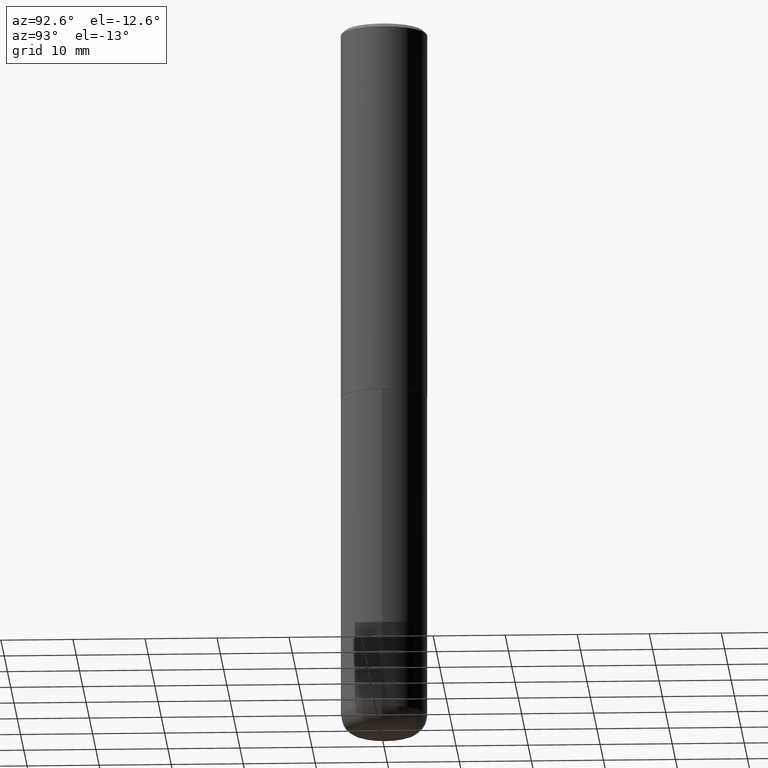
[diagram: clean part render]
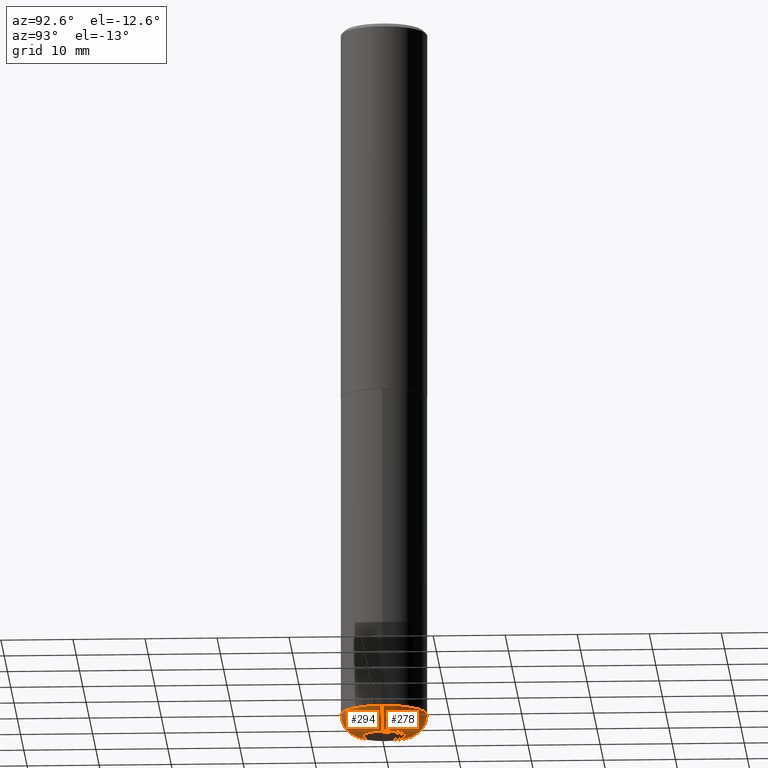
[diagram: same view with one multi-face feature highlighted, each face labeled with its STEP entity id]
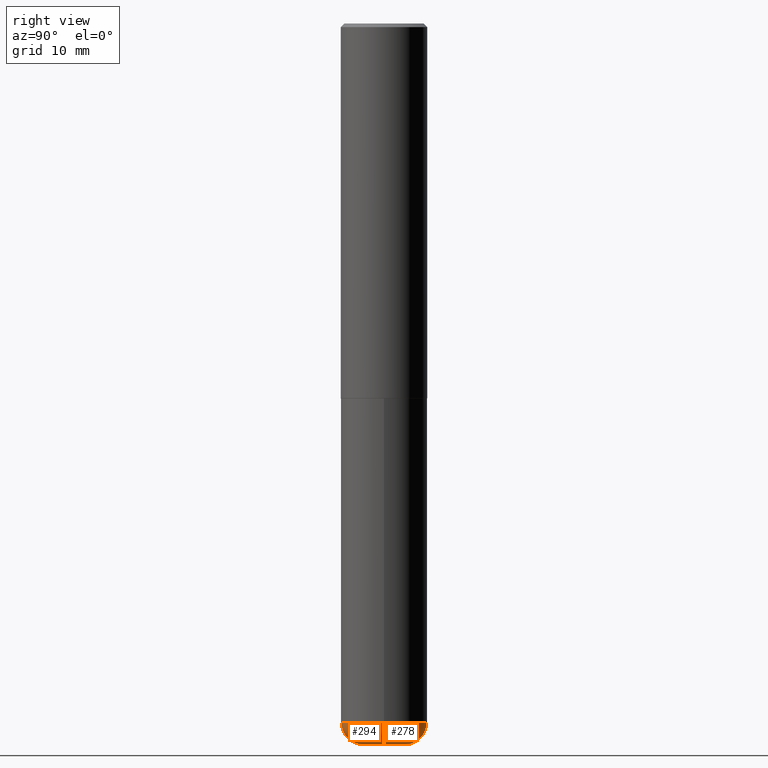
[diagram: same view with one multi-face feature highlighted, each face labeled with its STEP entity id]
A machine part, auxiliary view. The highlighted faces form ONE feature: a constant-radius fillet chain: 2 tangent blend faces with common blend radius 2.9997 mm. The faces share edges in the B-rep.
A second angle (right view) of the same feature is appended — it is thin or edge-on in the first view.
Their STEP definitions:
[1] entity #278 (Torus):
#13 = EDGE_CURVE ( 'NONE', #158, #172, #150, .T. ) ;
#22 = CARTESIAN_POINT ( 'NONE',  ( 9.627810689950883669E-29, -1.374596203102546341E-14, -3.937000000000000277 ) ) ;
#23 = CARTESIAN_POINT ( 'NONE',  ( -0.2362000000000000210, -1.165531614304273447E-14, -3.818900000000000183 ) ) ;
#24 = CIRCLE ( 'NONE', #367, 0.1181000000000000383 ) ;
#42 = ORIENTED_EDGE ( 'NONE', *, *, #106, .F. ) ;
#72 = VERTEX_POINT ( 'NONE', #23 ) ;
#73 = CIRCLE ( 'NONE', #308, 0.2362000000000000210 ) ;
#80 = EDGE_LOOP ( 'NONE', ( #314, #242, #42, #170 ) ) ;
#102 = CARTESIAN_POINT ( 'NONE',  ( 0.2362000000000000210, -1.498299386937758423E-14, -3.818900000000000183 ) ) ;
#106 = EDGE_CURVE ( 'NONE', #320, #72, #73, .T. ) ;
#116 = AXIS2_PLACEMENT_3D ( 'NONE', #22, #307, #154 ) ;
#128 = DIRECTION ( 'NONE',  ( 1.000000000000000000, -6.982962677686270655E-15, 0.000000000000000000 ) ) ;
#133 = CARTESIAN_POINT ( 'NONE',  ( 0.1181000000000000105, -1.457064992326021168E-14, -3.937000000000000277 ) ) ;
#150 = CIRCLE ( 'NONE', #116, 0.1181000000000000105 ) ;
#153 = DIRECTION ( 'NONE',  ( -2.445468806185136597E-29, 3.491481338843145583E-15, 1.000000000000000000 ) ) ;
#154 = DIRECTION ( 'NONE',  ( 1.000000000000000000, -6.982962677686272233E-15, 0.000000000000000000 ) ) ;
#158 = VERTEX_POINT ( 'NONE', #133 ) ;
#159 = CARTESIAN_POINT ( 'NONE',  ( 0.1180999999999999966, -1.415830597714283912E-14, -3.818900000000000183 ) ) ;
#162 = CARTESIAN_POINT ( 'NONE',  ( -0.1180999999999999966, -1.249446711397541187E-14, -3.818900000000000183 ) ) ;
#170 = ORIENTED_EDGE ( 'NONE', *, *, #265, .F. ) ;
#172 = VERTEX_POINT ( 'NONE', #418 ) ;
#179 = EDGE_CURVE ( 'NONE', #172, #72, #183, .T. ) ;
#183 = CIRCLE ( 'NONE', #409, 0.1181000000000000383 ) ;
#190 = TOROIDAL_SURFACE ( 'NONE', #243, 0.1180999999999999966, 0.1181000000000000383 ) ;
#194 = DIRECTION ( 'NONE',  ( 1.000000000000000000, -6.982962677686263555E-15, 4.883557194083111780E-29 ) ) ;
#216 = CARTESIAN_POINT ( 'NONE',  ( 9.339000823940418668E-29, -1.333361808490808928E-14, -3.818900000000000183 ) ) ;
#242 = ORIENTED_EDGE ( 'NONE', *, *, #179, .T. ) ;
#243 = AXIS2_PLACEMENT_3D ( 'NONE', #256, #259, #194 ) ;
#256 = CARTESIAN_POINT ( 'NONE',  ( 9.339000823940418668E-29, -1.333361808490808928E-14, -3.818900000000000183 ) ) ;
#259 = DIRECTION ( 'NONE',  ( -2.445468806185136597E-29, 3.491481338843145583E-15, 1.000000000000000000 ) ) ;
#265 = EDGE_CURVE ( 'NONE', #158, #320, #24, .T. ) ;
#278 = ADVANCED_FACE ( 'NONE', ( #391 ), #190, .T. ) ;
#286 = DIRECTION ( 'NONE',  ( -1.000000000000000000, 7.105427357601001859E-15, 0.000000000000000000 ) ) ;
#307 = DIRECTION ( 'NONE',  ( -2.445468806185136597E-29, 3.491481338843145583E-15, 1.000000000000000000 ) ) ;
#308 = AXIS2_PLACEMENT_3D ( 'NONE', #216, #153, #344 ) ;
#314 = ORIENTED_EDGE ( 'NONE', *, *, #13, .T. ) ;
#320 = VERTEX_POINT ( 'NONE', #102 ) ;
#324 = DIRECTION ( 'NONE',  ( -6.982962677686266711E-15, -1.000000000000000000, 3.491481338843145583E-15 ) ) ;
#344 = DIRECTION ( 'NONE',  ( 1.000000000000000000, -6.982962677686264344E-15, 0.000000000000000000 ) ) ;
#367 = AXIS2_PLACEMENT_3D ( 'NONE', #159, #324, #128 ) ;
#391 = FACE_OUTER_BOUND ( 'NONE', #80, .T. ) ;
#409 = AXIS2_PLACEMENT_3D ( 'NONE', #162, #415, #286 ) ;
#415 = DIRECTION ( 'NONE',  ( 7.105427357601001859E-15, 1.000000000000000000, -3.491481338843145583E-15 ) ) ;
#418 = CARTESIAN_POINT ( 'NONE',  ( -0.1181000000000000383, -1.228106360156775866E-14, -3.937000000000000277 ) ) ;
[2] entity #294 (Torus):
#18 = TOROIDAL_SURFACE ( 'NONE', #406, 0.1180999999999999966, 0.1181000000000000383 ) ;
#23 = CARTESIAN_POINT ( 'NONE',  ( -0.2362000000000000210, -1.165531614304273447E-14, -3.818900000000000183 ) ) ;
#24 = CIRCLE ( 'NONE', #367, 0.1181000000000000383 ) ;
#43 = EDGE_CURVE ( 'NONE', #172, #158, #301, .T. ) ;
#60 = CARTESIAN_POINT ( 'NONE',  ( 9.339000823940418668E-29, -1.333361808490808928E-14, -3.818900000000000183 ) ) ;
#72 = VERTEX_POINT ( 'NONE', #23 ) ;
#89 = DIRECTION ( 'NONE',  ( -2.445468806185136597E-29, 3.491481338843145583E-15, 1.000000000000000000 ) ) ;
#100 = DIRECTION ( 'NONE',  ( 1.000000000000000000, -6.982962677686263555E-15, 4.883557194083111780E-29 ) ) ;
#102 = CARTESIAN_POINT ( 'NONE',  ( 0.2362000000000000210, -1.498299386937758423E-14, -3.818900000000000183 ) ) ;
#128 = DIRECTION ( 'NONE',  ( 1.000000000000000000, -6.982962677686270655E-15, 0.000000000000000000 ) ) ;
#133 = CARTESIAN_POINT ( 'NONE',  ( 0.1181000000000000105, -1.457064992326021168E-14, -3.937000000000000277 ) ) ;
#145 = ORIENTED_EDGE ( 'NONE', *, *, #265, .T. ) ;
#152 = DIRECTION ( 'NONE',  ( 1.000000000000000000, -6.982962677686272233E-15, 0.000000000000000000 ) ) ;
#158 = VERTEX_POINT ( 'NONE', #133 ) ;
#159 = CARTESIAN_POINT ( 'NONE',  ( 0.1180999999999999966, -1.415830597714283912E-14, -3.818900000000000183 ) ) ;
#162 = CARTESIAN_POINT ( 'NONE',  ( -0.1180999999999999966, -1.249446711397541187E-14, -3.818900000000000183 ) ) ;
#172 = VERTEX_POINT ( 'NONE', #418 ) ;
#179 = EDGE_CURVE ( 'NONE', #172, #72, #183, .T. ) ;
#183 = CIRCLE ( 'NONE', #409, 0.1181000000000000383 ) ;
#205 = ORIENTED_EDGE ( 'NONE', *, *, #179, .F. ) ;
#217 = CIRCLE ( 'NONE', #377, 0.2362000000000000210 ) ;
#224 = EDGE_CURVE ( 'NONE', #72, #320, #217, .T. ) ;
#227 = DIRECTION ( 'NONE',  ( -2.445468806185136597E-29, 3.491481338843145583E-15, 1.000000000000000000 ) ) ;
#262 = CARTESIAN_POINT ( 'NONE',  ( 9.339000823940418668E-29, -1.333361808490808928E-14, -3.818900000000000183 ) ) ;
#265 = EDGE_CURVE ( 'NONE', #158, #320, #24, .T. ) ;
#286 = DIRECTION ( 'NONE',  ( -1.000000000000000000, 7.105427357601001859E-15, 0.000000000000000000 ) ) ;
#290 = ORIENTED_EDGE ( 'NONE', *, *, #43, .T. ) ;
#292 = FACE_OUTER_BOUND ( 'NONE', #394, .T. ) ;
#294 = ADVANCED_FACE ( 'NONE', ( #292 ), #18, .T. ) ;
#301 = CIRCLE ( 'NONE', #334, 0.1181000000000000105 ) ;
#320 = VERTEX_POINT ( 'NONE', #102 ) ;
#324 = DIRECTION ( 'NONE',  ( -6.982962677686266711E-15, -1.000000000000000000, 3.491481338843145583E-15 ) ) ;
#334 = AXIS2_PLACEMENT_3D ( 'NONE', #342, #89, #152 ) ;
#335 = ORIENTED_EDGE ( 'NONE', *, *, #224, .F. ) ;
#342 = CARTESIAN_POINT ( 'NONE',  ( 9.627810689950883669E-29, -1.374596203102546341E-14, -3.937000000000000277 ) ) ;
#347 = DIRECTION ( 'NONE',  ( 1.000000000000000000, -6.982962677686264344E-15, 0.000000000000000000 ) ) ;
#367 = AXIS2_PLACEMENT_3D ( 'NONE', #159, #324, #128 ) ;
#377 = AXIS2_PLACEMENT_3D ( 'NONE', #60, #227, #347 ) ;
#388 = DIRECTION ( 'NONE',  ( -2.445468806185136597E-29, 3.491481338843145583E-15, 1.000000000000000000 ) ) ;
#394 = EDGE_LOOP ( 'NONE', ( #205, #290, #145, #335 ) ) ;
#406 = AXIS2_PLACEMENT_3D ( 'NONE', #262, #388, #100 ) ;
#409 = AXIS2_PLACEMENT_3D ( 'NONE', #162, #415, #286 ) ;
#415 = DIRECTION ( 'NONE',  ( 7.105427357601001859E-15, 1.000000000000000000, -3.491481338843145583E-15 ) ) ;
#418 = CARTESIAN_POINT ( 'NONE',  ( -0.1181000000000000383, -1.228106360156775866E-14, -3.937000000000000277 ) ) ;